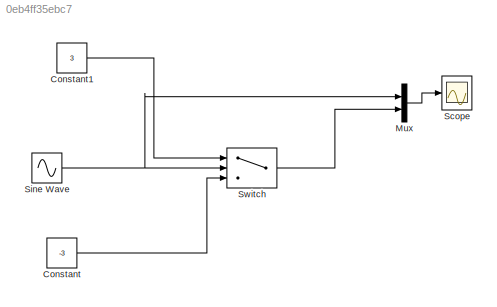
MODEL slx_0eb4ff35ebc7
KIND model
BLOCK [Constant] Constant
  Value = -3
BLOCK [Constant] Constant1
  Value = 3
BLOCK [Mux] Mux
  DisplayOption = bar
  Inputs = 2
  Ports = [2, 1]
BLOCK [Scope] Scope
  DataFormat = StructureWithTime
  Floating = off
  NumInputPorts = 1
  Ports = [1]
  SampleTime = 0
  ShowLegends = off
BLOCK [Sin] Sine Wave
  Amplitude = 2
  Ports = [0, 1]
  SampleTime = 0
BLOCK [Switch] Switch
  Criteria = u2 > Threshold
  InputSameDT = off
  SaturateOnIntegerOverflow = off
  Threshold = 1
LINE Constant1:1 -> Switch:1
LINE Constant:1 -> Switch:3
LINE Mux:1 -> Scope:1
NET Sine Wave:1 -> Mux:1, Switch:2
LINE Switch:1 -> Mux:2
note: NET lines group one-source signal fan-out (src -> all destinations, sorted); 1:1 wires keep LINE
